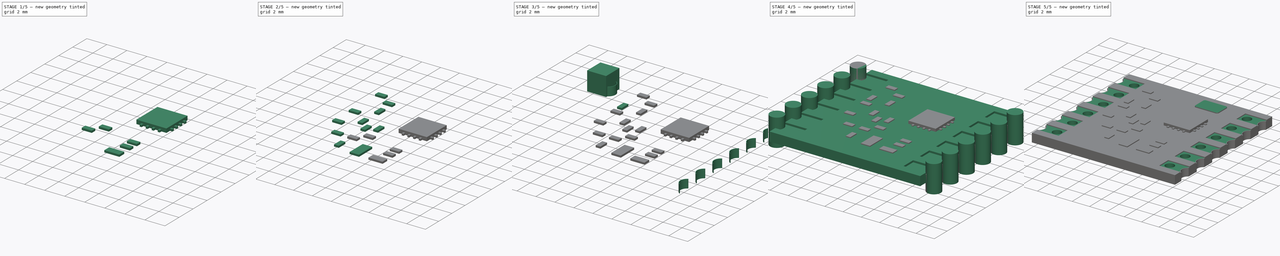
[diagram: build sequence overview — one tinted view per stage of 5, left to right]
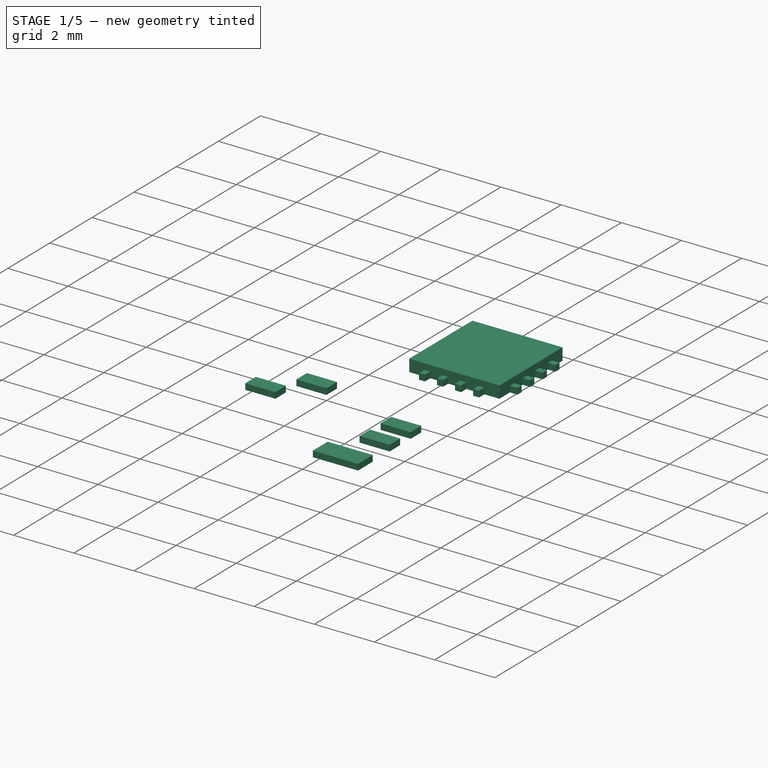
[diagram: stage 1 of 5 — iso view after this stage's code; geometry added in this stage tinted green]
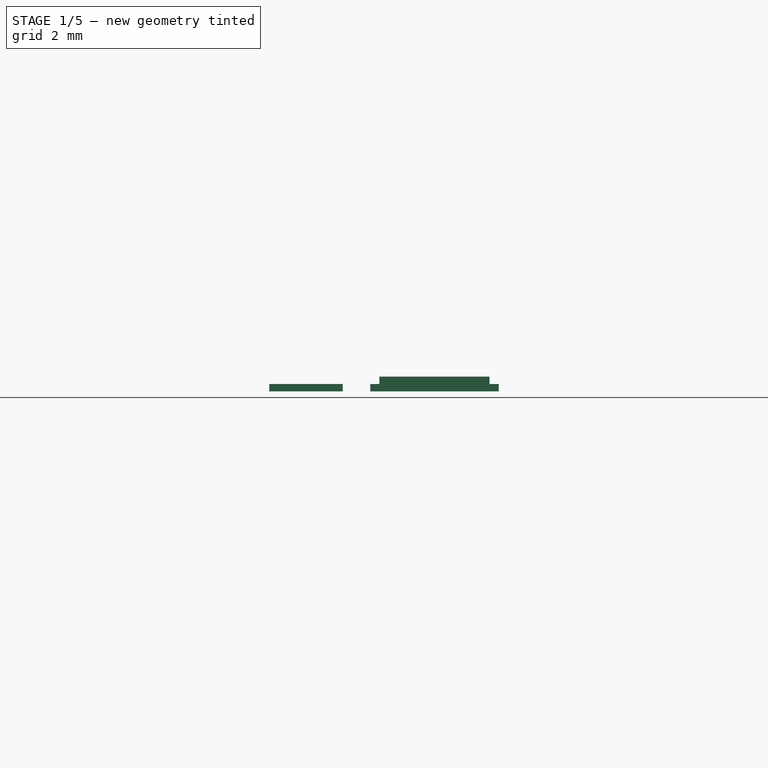
[diagram: stage 1 of 5 — front view after this stage's code; geometry added in this stage tinted green]
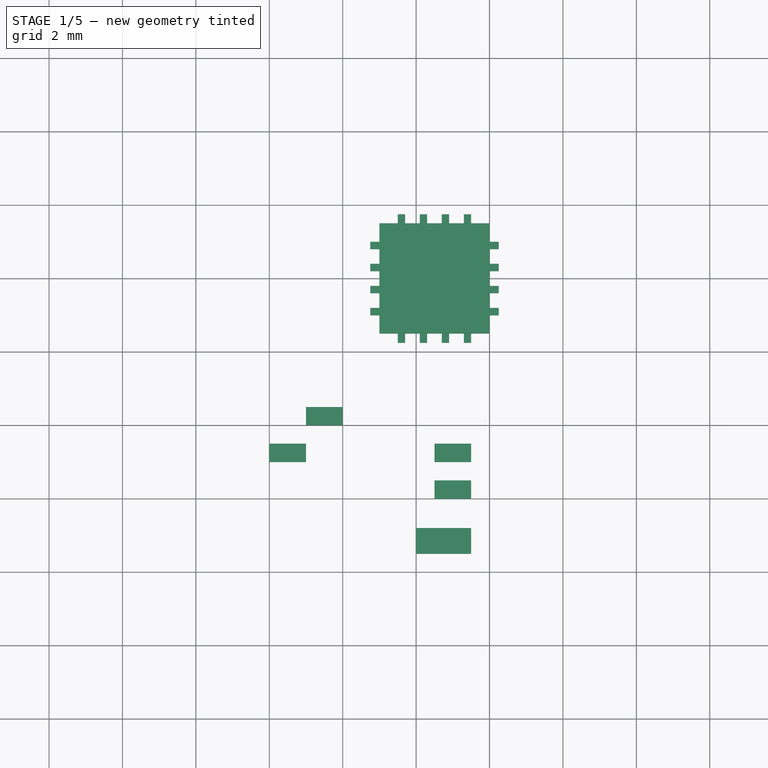
[diagram: stage 1 of 5 — top view after this stage's code; geometry added in this stage tinted green]
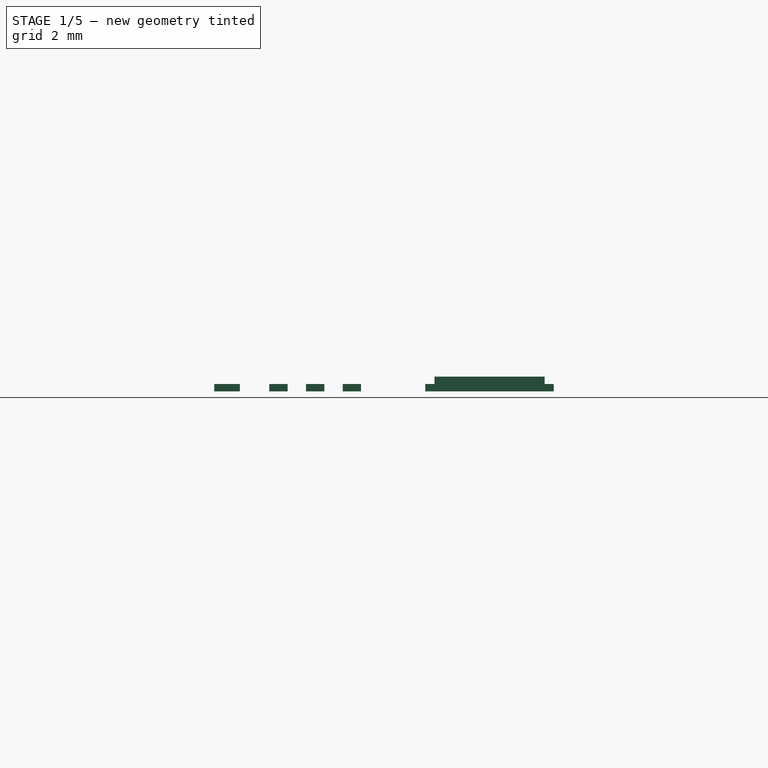
[diagram: stage 1 of 5 — right view after this stage's code; geometry added in this stage tinted green]
FCSTD DOCUMENT  (FreeCAD 0.17R11223 (Git))
Label: ZETA-433-SO_02
License: All rights reserved
LicenseURL: http://en.wikipedia.org/wiki/All_rights_reserved
objects: Part::Box×25, Part::FeaturePython×9, Part::Cut×8, Part::Cylinder×7, Part::MultiFuse×3, Part::Fillet×2, Sketcher::SketchObject×1, PartDesign::Pad×1, PartDesign::Body×1, App::DocumentObjectGroup×1
note: 58 computed .brp shape members not serialized (recipe doc carries the construction recipe); baked Part::Feature solids carry a one-line shape summary decoded from their .brp

FEATURE [Part::Box] Box015  label="Kub015"
  AttacherType = Attacher::AttachEngine3D
  Height = 0.2
  Length = 1
  Placement = pos=(-2,-3,0.9) rot=(0,0,1;0rad)
  Width = 0.5
FEATURE [Part::Box] Box016  label="Kub016"
  AttacherType = Attacher::AttachEngine3D
  Height = 0.2
  Length = 1
  Placement = pos=(-1,-2,0.9) rot=(0,0,1;0rad)
  Width = 0.5
FEATURE [Part::Box] Box017  label="Kub017"
  AttacherType = Attacher::AttachEngine3D
  Height = 0.2
  Length = 1.5
  Placement = pos=(2,-5.5,0.9) rot=(0,0,1;0rad)
  Width = 0.7
FEATURE [Part::Box] Box018  label="Kub018"
  AttacherType = Attacher::AttachEngine3D
  Height = 0.2
  Length = 1
  Placement = pos=(2.5,-4,0.9) rot=(0,0,1;0rad)
  Width = 0.5
FEATURE [Part::Box] Box019  label="Kub019"
  AttacherType = Attacher::AttachEngine3D
  Height = 0.2
  Length = 1
  Placement = pos=(2.5,-3,0.9) rot=(0,0,1;0rad)
  Width = 0.5
FEATURE [Part::Box] Box021  label="Kub021"
  AttacherType = Attacher::AttachEngine3D
  Height = 0.4
  Length = 3
  Placement = pos=(1,0.5,0.9) rot=(0,0,1;0rad)
  Width = 3
FEATURE [Part::Box] Box022  label="Kub022"
  AttacherType = Attacher::AttachEngine3D
  Height = 0.2
  Length = 0.2
  Placement = pos=(1.5,0.25,0.9) rot=(0,0,1;0rad)
  Width = 0.7
FEATURE [Part::FeaturePython] Array005  # Draft array (typed FeaturePython)
  Angle = 360
  ArrayType = 0
  Axis = (0,0,1)
  Base = -> Box022
  Center = (0,0,0)
  Fuse = false
  IntervalAxis = (0,0,0)
  IntervalX = (0.6,0,0)
  IntervalY = (0,2.8,0)
  IntervalZ = (0,0,0)
  NumberPolar = 1
  NumberX = 4
  NumberY = 2
  NumberZ = 1
FEATURE [Part::Box] Box023  label="Kub023"
  AttacherType = Attacher::AttachEngine3D
  Height = 0.2
  Length = 0.7
  Placement = pos=(0.75,2.8,0.9) rot=(0,0,1;0rad)
  Width = 0.2
FEATURE [Part::FeaturePython] Array006  # Draft array (typed FeaturePython)
  Angle = 360
  ArrayType = 0
  Axis = (0,0,1)
  Base = -> Box023
  Center = (0,0,0)
  Fuse = false
  IntervalAxis = (0,0,0)
  IntervalX = (2.8,0,0)
  IntervalY = (0,-0.6,0)
  IntervalZ = (0,0,0)
  NumberPolar = 1
  NumberX = 2
  NumberY = 4
  NumberZ = 1
FEATURE [Part::MultiFuse] Fusion002
  Shapes = -> [Box021,Array006,Array005]
FEATURE [App::DocumentObjectGroup] Grupp  label="Chips"
  Group = -> [Fusion002,Box003,Box004,Box005,Box006,Box007,Box008,Box009,Box010,Box011,Box012,Box013,Box014,Box015,Box016,Box017,Box018,Box019]
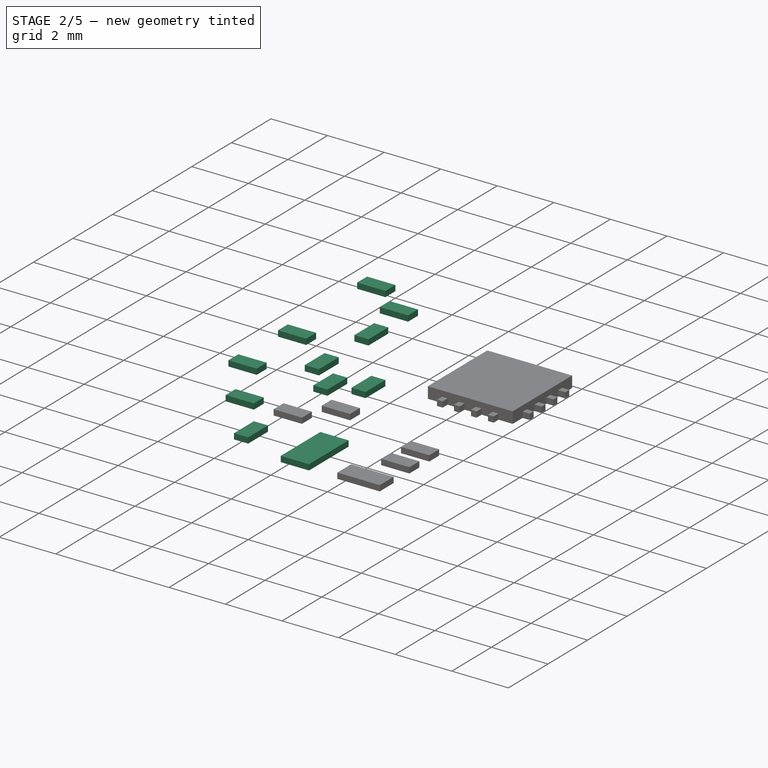
[diagram: stage 2 of 5 — iso view after this stage's code; geometry added in this stage tinted green]
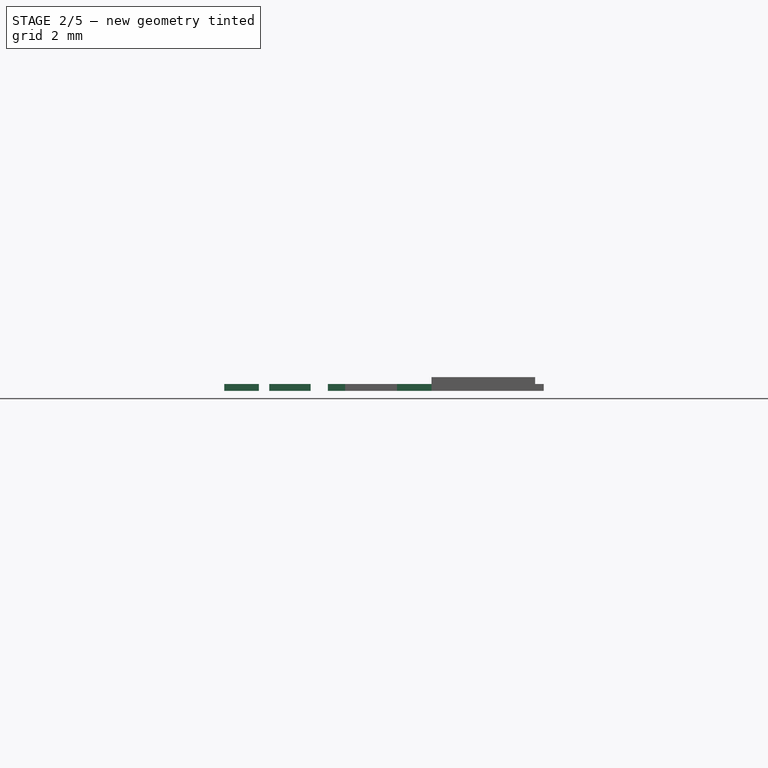
[diagram: stage 2 of 5 — front view after this stage's code; geometry added in this stage tinted green]
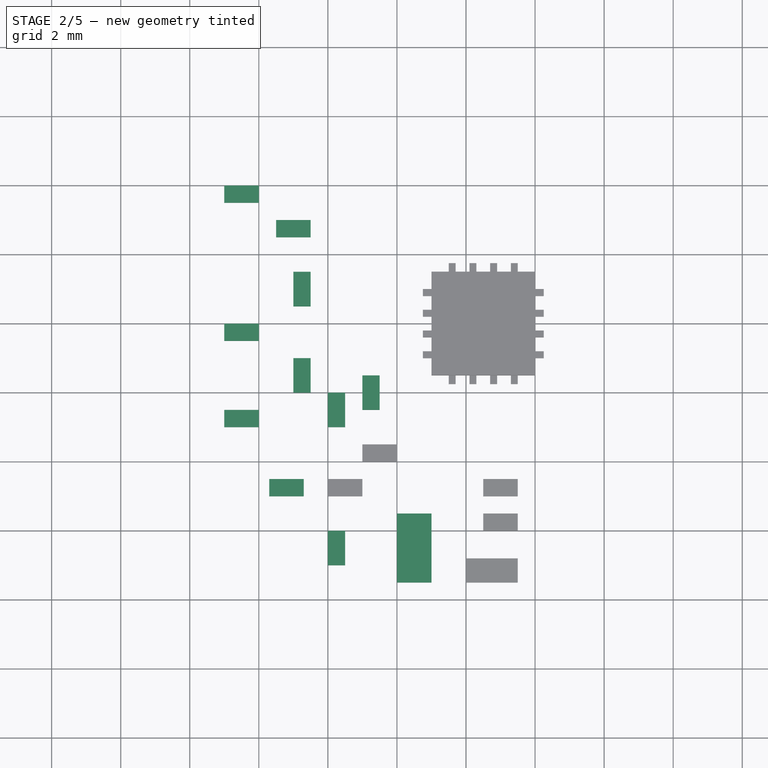
[diagram: stage 2 of 5 — top view after this stage's code; geometry added in this stage tinted green]
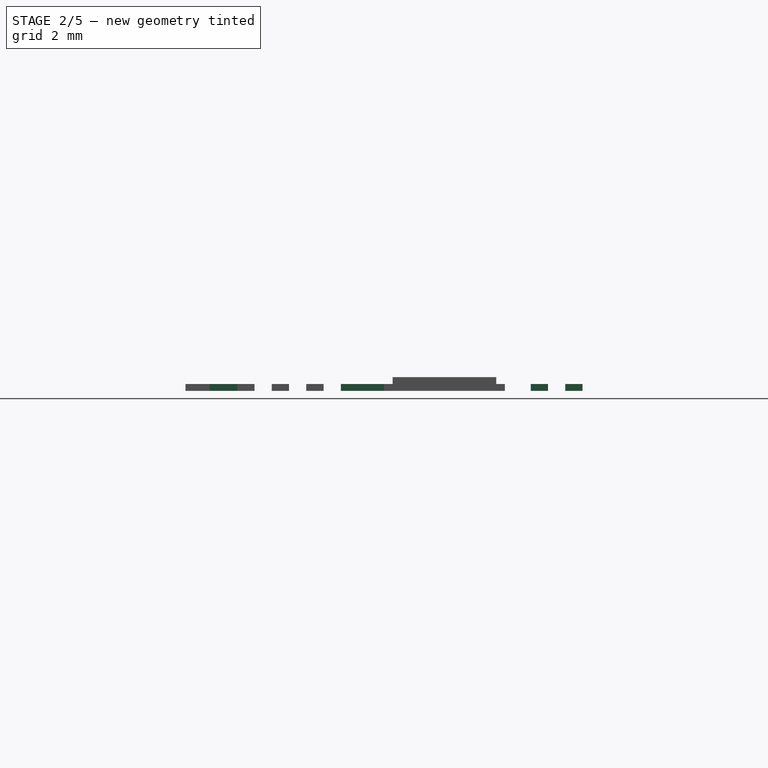
[diagram: stage 2 of 5 — right view after this stage's code; geometry added in this stage tinted green]
FEATURE [Part::Box] Box004  label="Kub004"
  AttacherType = Attacher::AttachEngine3D
  Height = 0.2
  Length = 0.5
  Placement = pos=(-3,2.5,0.9) rot=(0,0,1;0rad)
  Width = 1
FEATURE [Part::Box] Box005  label="Kub005"
  AttacherType = Attacher::AttachEngine3D
  Height = 0.2
  Length = 0.5
  Placement = pos=(-2,-1,0.9) rot=(0,0,1;0rad)
  Width = 1
FEATURE [Part::Box] Box006  label="Kub006"
  AttacherType = Attacher::AttachEngine3D
  Height = 0.2
  Length = 0.5
  Placement = pos=(-2,-5,0.9) rot=(0,0,1;0rad)
  Width = 1
FEATURE [Part::Box] Box007  label="Kub007"
  AttacherType = Attacher::AttachEngine3D
  Height = 0.2
  Length = 0.5
  Placement = pos=(-1,-0.5,0.9) rot=(0,0,1;0rad)
  Width = 1
FEATURE [Part::Box] Box008  label="Kub008"
  AttacherType = Attacher::AttachEngine3D
  Height = 0.2
  Length = 1
  Placement = pos=(0,-5.5,0.9) rot=(0,0,1;0rad)
  Width = 2
FEATURE [Part::Box] Box009  label="Kub009"
  AttacherType = Attacher::AttachEngine3D
  Height = 0.2
  Length = 1
  Placement = pos=(-5,5.5,0.9) rot=(0,0,1;0rad)
  Width = 0.5
FEATURE [Part::Box] Box010  label="Kub010"
  AttacherType = Attacher::AttachEngine3D
  Height = 0.2
  Length = 1
  Placement = pos=(-5,1.5,0.9) rot=(0,0,1;0rad)
  Width = 0.5
FEATURE [Part::Box] Box011  label="Kub011"
  AttacherType = Attacher::AttachEngine3D
  Height = 0.2
  Length = 1
  Placement = pos=(-3.5,4.5,0.9) rot=(0,0,1;0rad)
  Width = 0.5
FEATURE [Part::Box] Box012  label="Kub012"
  AttacherType = Attacher::AttachEngine3D
  Height = 0.2
  Length = 1
  Placement = pos=(-5,-1,0.9) rot=(0,0,1;0rad)
  Width = 0.5
FEATURE [Part::Box] Box013  label="Kub013"
  AttacherType = Attacher::AttachEngine3D
  Height = 0.2
  Length = 1
  Placement = pos=(-3.7,-3,0.9) rot=(0,0,1;0rad)
  Width = 0.5
FEATURE [Part::Box] Box014  label="Kub014"
  AttacherType = Attacher::AttachEngine3D
  Height = 0.2
  Length = 0.5
  Placement = pos=(-3,0,0.9) rot=(0,0,1;0rad)
  Width = 1
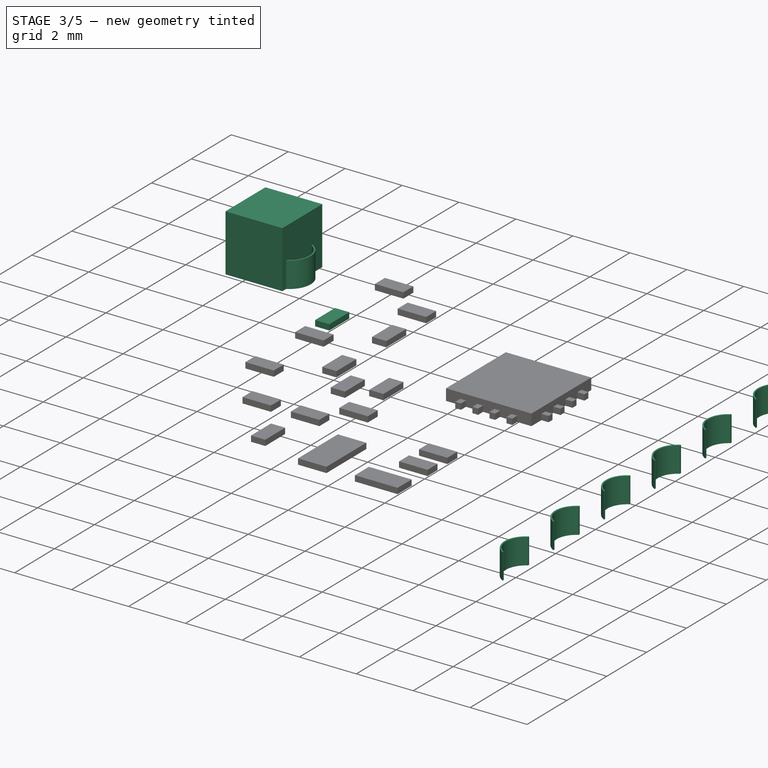
[diagram: stage 3 of 5 — iso view after this stage's code; geometry added in this stage tinted green]
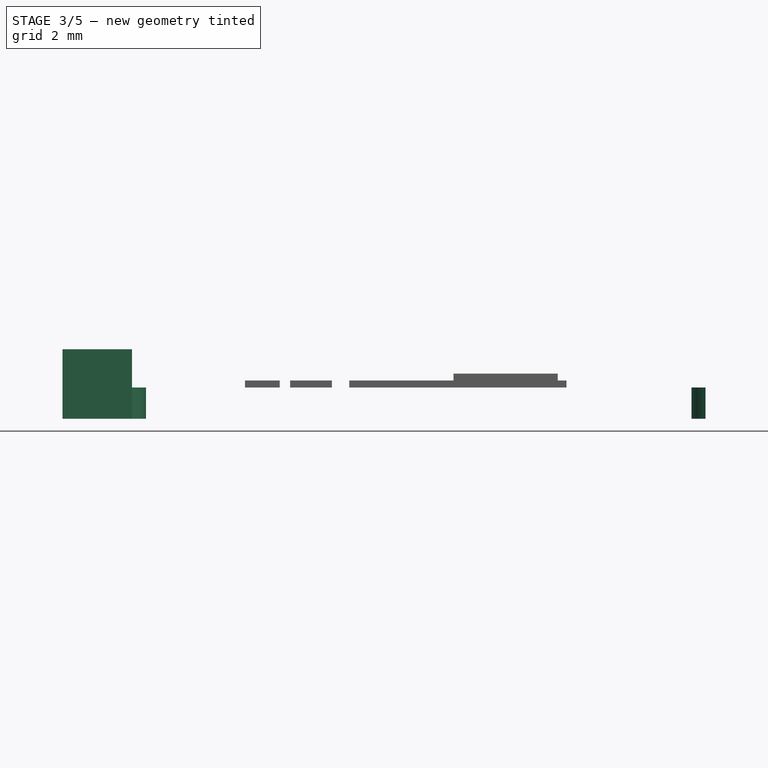
[diagram: stage 3 of 5 — front view after this stage's code; geometry added in this stage tinted green]
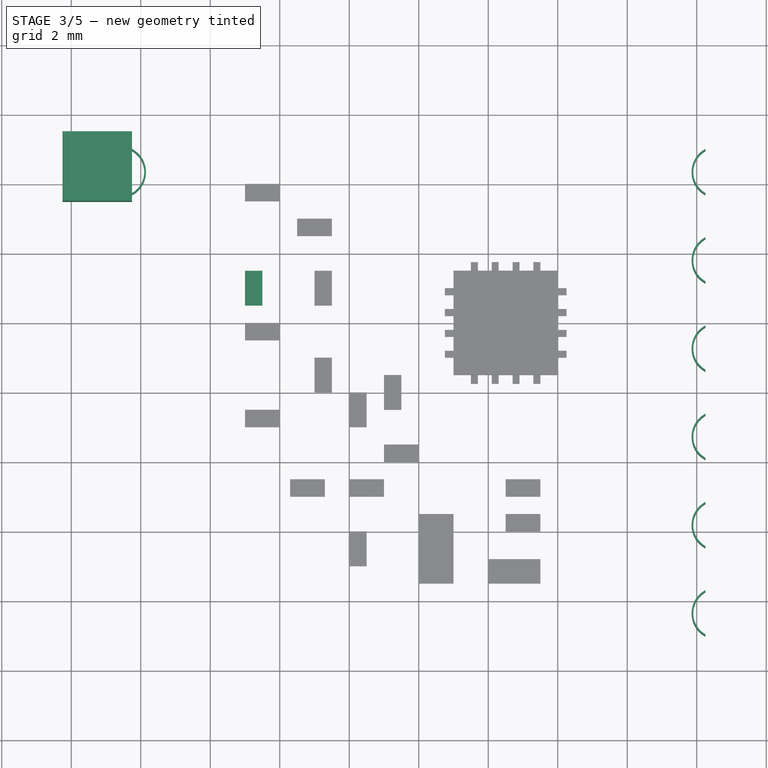
[diagram: stage 3 of 5 — top view after this stage's code; geometry added in this stage tinted green]
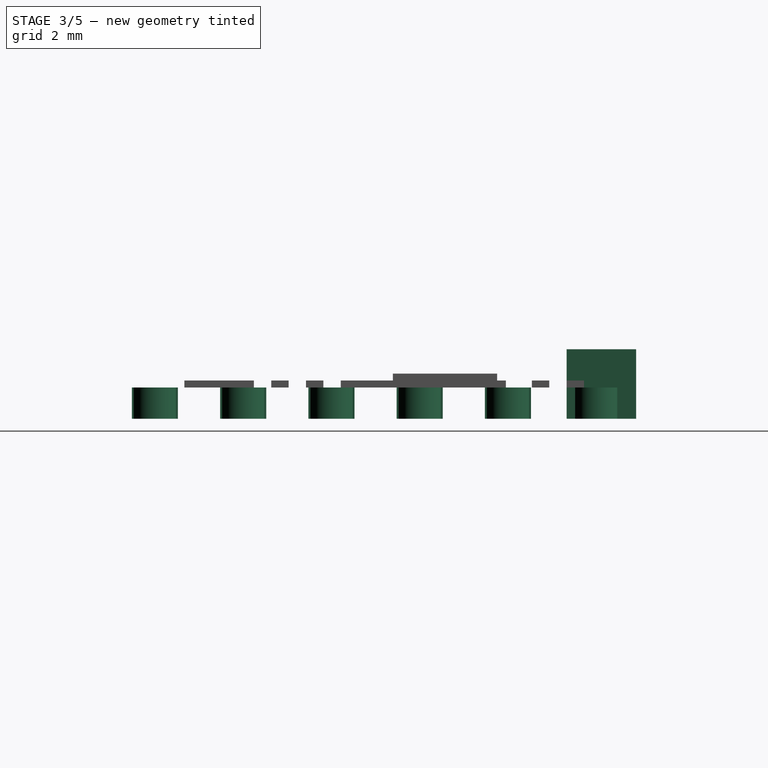
[diagram: stage 3 of 5 — right view after this stage's code; geometry added in this stage tinted green]
FEATURE [Part::Cylinder] Cylinder001
  Angle = 360
  AttacherType = Attacher::AttachEngine3D
  Height = 0.9
  Placement = pos=(-8.6,6.35,0) rot=(0,0,1;0rad)
  Radius = 0.75
FEATURE [Part::Cylinder] Cylinder004
  Angle = 360
  AttacherType = Attacher::AttachEngine3D
  Height = 0.9
  Placement = pos=(-8.6,6.35,0) rot=(0,0,1;0rad)
  Radius = 0.7
FEATURE [Part::Box] Box002  label="Kub002"
  AttacherType = Attacher::AttachEngine3D
  Height = 2
  Length = 2
  Placement = pos=(-10.25,5.5,0) rot=(0,0,1;0rad)
  Width = 2
FEATURE [Part::Cut] Cut004
  Base = -> Cylinder001
  Tool = -> Cylinder004
FEATURE [Part::Box] Box003  label="Kub003"
  AttacherType = Attacher::AttachEngine3D
  Height = 0.2
  Length = 0.5
  Placement = pos=(-5,2.5,0.9) rot=(0,0,1;0rad)
  Width = 1
FEATURE [Part::Cylinder] Cylinder005
  Angle = 360
  AttacherType = Attacher::AttachEngine3D
  Height = 0.9
  Placement = pos=(-8.6,6.35,0) rot=(0,0,1;0rad)
  Radius = 0.75
FEATURE [Part::Cylinder] Cylinder006
  Angle = 360
  AttacherType = Attacher::AttachEngine3D
  Height = 0.9
  Placement = pos=(-8.6,6.35,0) rot=(0,0,1;0rad)
  Radius = 0.7
FEATURE [Part::Box] Box024  label="Kub024"
  AttacherType = Attacher::AttachEngine3D
  Height = 2
  Length = 2
  Placement = pos=(-10.25,5.5,0) rot=(0,0,1;0rad)
  Width = 2
FEATURE [Part::Cut] Cut006
  Base = -> Cylinder005
  Tool = -> Cylinder006
FEATURE [Part::Cut] Cut007
  Base = -> Cut006
  Placement = pos=(0,0,0) rot=(0,0,1;3.14159rad)
  Tool = -> Box024
FEATURE [Part::FeaturePython] Array008  # Draft array (typed FeaturePython)
  Angle = 360
  ArrayType = 0
  Axis = (0,0,1)
  Base = -> Cut007
  Center = (0,0,0)
  Fuse = false
  IntervalAxis = (0,0,0)
  IntervalX = (1,0,0)
  IntervalY = (0,2.54,0)
  IntervalZ = (0,0,0)
  NumberPolar = 1
  NumberX = 1
  NumberY = 6
  NumberZ = 1
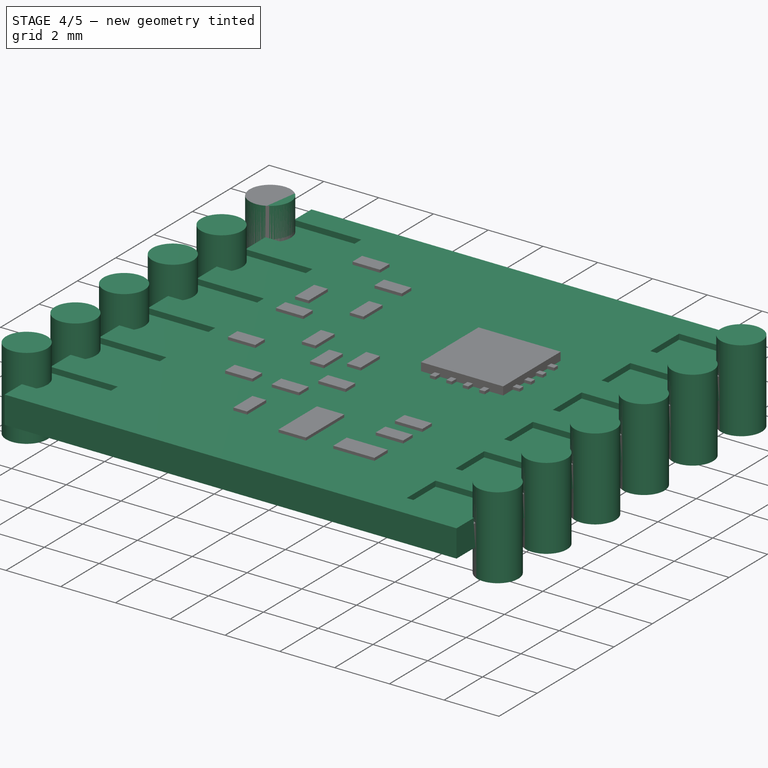
[diagram: stage 4 of 5 — iso view after this stage's code; geometry added in this stage tinted green]
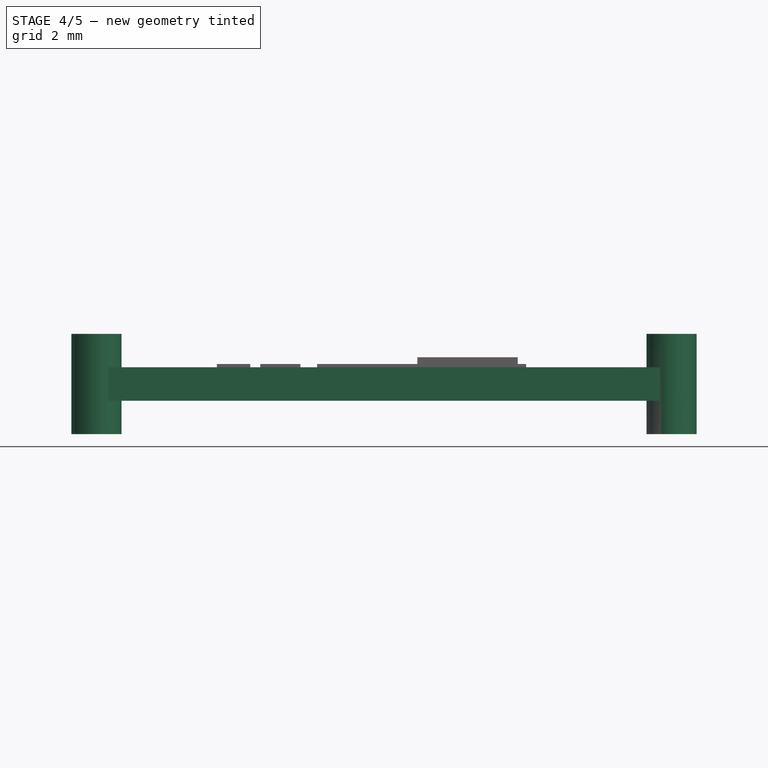
[diagram: stage 4 of 5 — front view after this stage's code; geometry added in this stage tinted green]
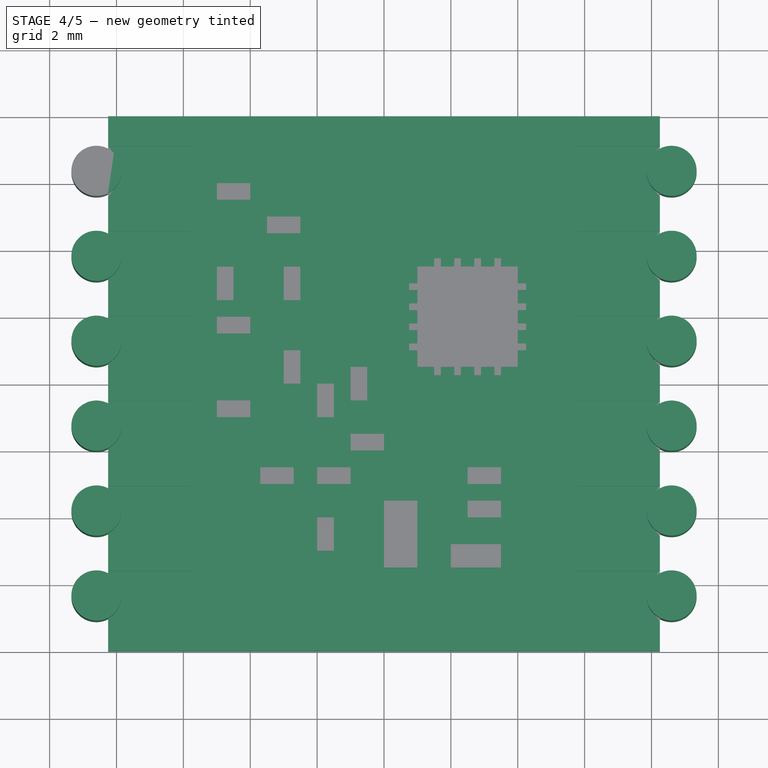
[diagram: stage 4 of 5 — top view after this stage's code; geometry added in this stage tinted green]
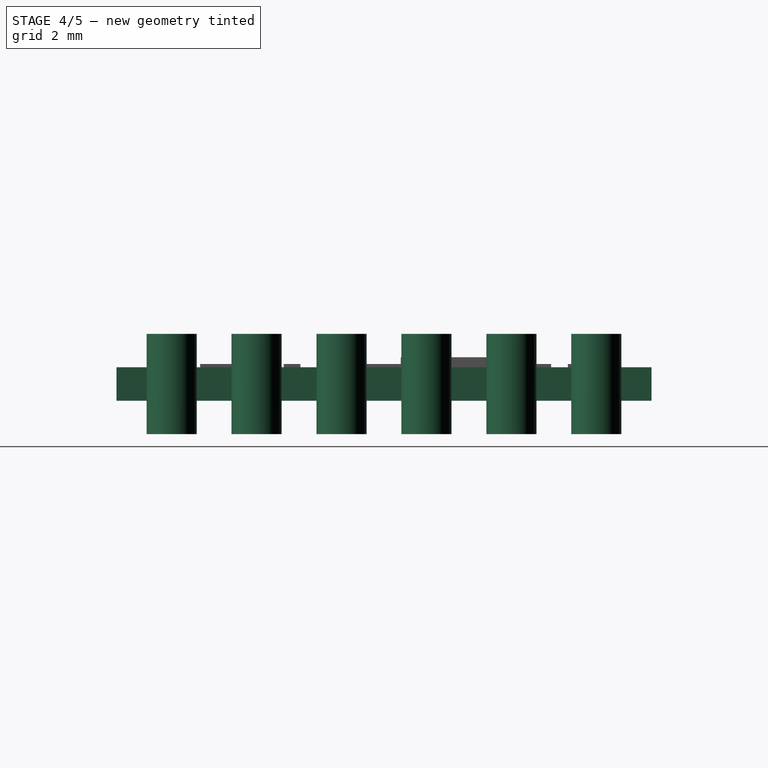
[diagram: stage 4 of 5 — right view after this stage's code; geometry added in this stage tinted green]
FEATURE [Sketcher::SketchObject] Sketch
  MapMode = 5
  Support = -> [XY_Plane]
  sketch-geometry (4):
    g0: LineSegment StartX=-8.25 StartY=8 StartZ=0 EndX=8.25 EndY=8 EndZ=0
    g1: LineSegment StartX=8.25 StartY=8 StartZ=0 EndX=8.25 EndY=-8 EndZ=0
    g2: LineSegment StartX=8.25 StartY=-8 StartZ=0 EndX=-8.25 EndY=-8 EndZ=0
    g3: LineSegment StartX=-8.25 StartY=-8 StartZ=0 EndX=-8.25 EndY=8 EndZ=0
  constraints (12):
    c: Coincident(g0,g1)
    c: Coincident(g1,g2)
    c: Coincident(g2,g3)
    c: Coincident(g3,g0)
    c: Horizontal(g0)
    c: Horizontal(g2)
    c: Vertical(g1)
    c: Vertical(g3)
    c: DistanceY(g1,g0) = 16
    c: DistanceX(g0,g0) = 16.5
    c: DistanceY(g-1,g0) = 8
    c: DistanceX(g0,g-1) = 8.25
FEATURE [PartDesign::Pad] Pad
  Length = 1
  Length2 = 100
  Profile = -> Sketch
  Type = 0
FEATURE [PartDesign::Body] Body
  Group = -> [Sketch,Pad]
  Origin = -> BodyOrigin
  Tip = -> Pad
FEATURE [Part::Cylinder] Cylinder
  Angle = 360
  AttacherType = Attacher::AttachEngine3D
  Height = 3
  Placement = pos=(-8.6,6.35,-1) rot=(0,0,1;0rad)
  Radius = 0.75
FEATURE [Part::FeaturePython] Array  # Draft array (typed FeaturePython)
  Angle = 360
  ArrayType = 0
  Axis = (0,0,1)
  Base = -> Cylinder
  Center = (0,0,0)
  Fuse = false
  IntervalAxis = (0,0,0)
  IntervalX = (17.2,0,0)
  IntervalY = (0,-2.54,0)
  IntervalZ = (0,0,0)
  NumberPolar = 1
  NumberX = 2
  NumberY = 6
  NumberZ = 1
FEATURE [Part::Box] Box  label="Kub"
  AttacherType = Attacher::AttachEngine3D
  Height = 0.3
  Length = 2.5
  Placement = pos=(-8.3,5.6,0.8) rot=(0,0,1;0rad)
  Width = 1.5
FEATURE [Part::FeaturePython] Array002  # Draft array (typed FeaturePython)
  Angle = 360
  ArrayType = 0
  Axis = (0,0,1)
  Base = -> Box
  Center = (0,0,0)
  Fuse = false
  IntervalAxis = (0,0,0)
  IntervalX = (14.1,0,0)
  IntervalY = (0,-2.54,0)
  IntervalZ = (0,0,0)
  NumberPolar = 1
  NumberX = 2
  NumberY = 6
  NumberZ = 1
FEATURE [Part::Cut] Cut
  Base = -> Body
  Tool = -> Array002
FEATURE [Part::Cut] Cut001
  Base = -> Cut
  Tool = -> Array
FEATURE [Part::Cylinder] Cylinder003
  Angle = 360
  AttacherType = Attacher::AttachEngine3D
  Height = 3
  Placement = pos=(-8.6,6.35,-1) rot=(0,0,1;0rad)
  Radius = 0.75
FEATURE [Part::FeaturePython] Array004  # Draft array (typed FeaturePython)
  Angle = 360
  ArrayType = 0
  Axis = (0,0,1)
  Base = -> Cylinder003
  Center = (0,0,0)
  Fuse = false
  IntervalAxis = (0,0,0)
  IntervalX = (17.2,0,0)
  IntervalY = (0,-2.54,0)
  IntervalZ = (0,0,0)
  NumberPolar = 1
  NumberX = 2
  NumberY = 6
  NumberZ = 1
FEATURE [Part::Cut] Cut005
  Base = -> Cut004
  Tool = -> Box002
FEATURE [Part::FeaturePython] Array007  # Draft array (typed FeaturePython)
  Angle = 360
  ArrayType = 0
  Axis = (0,0,1)
  Base = -> Cut005
  Center = (0,0,0)
  Fuse = false
  IntervalAxis = (0,0,0)
  IntervalX = (1,0,0)
  IntervalY = (0,-2.54,0)
  IntervalZ = (0,0,0)
  NumberPolar = 1
  NumberX = 1
  NumberY = 6
  NumberZ = 1
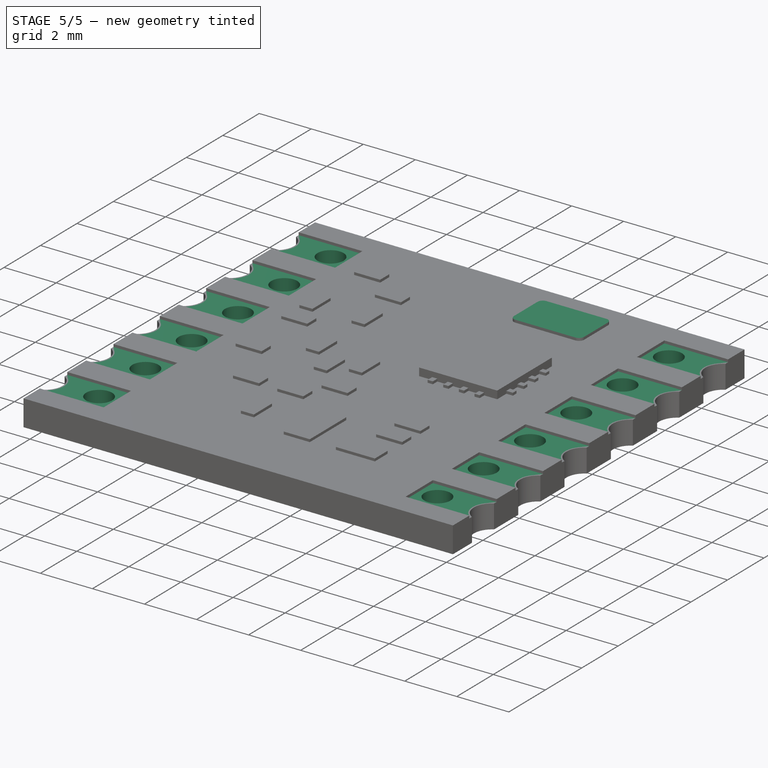
[diagram: stage 5 of 5 — iso view after this stage's code; geometry added in this stage tinted green]
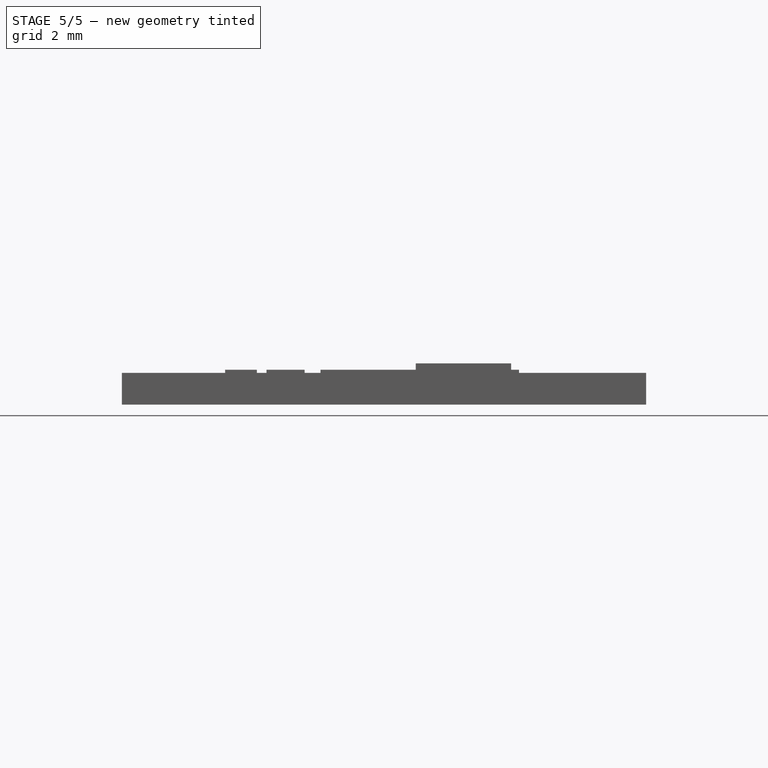
[diagram: stage 5 of 5 — front view after this stage's code; geometry added in this stage tinted green]
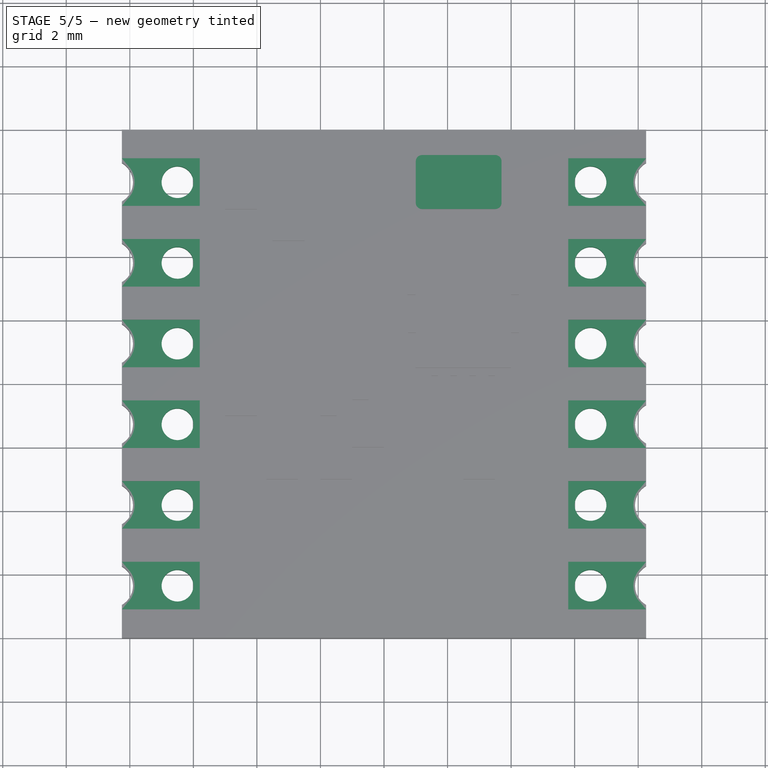
[diagram: stage 5 of 5 — top view after this stage's code; geometry added in this stage tinted green]
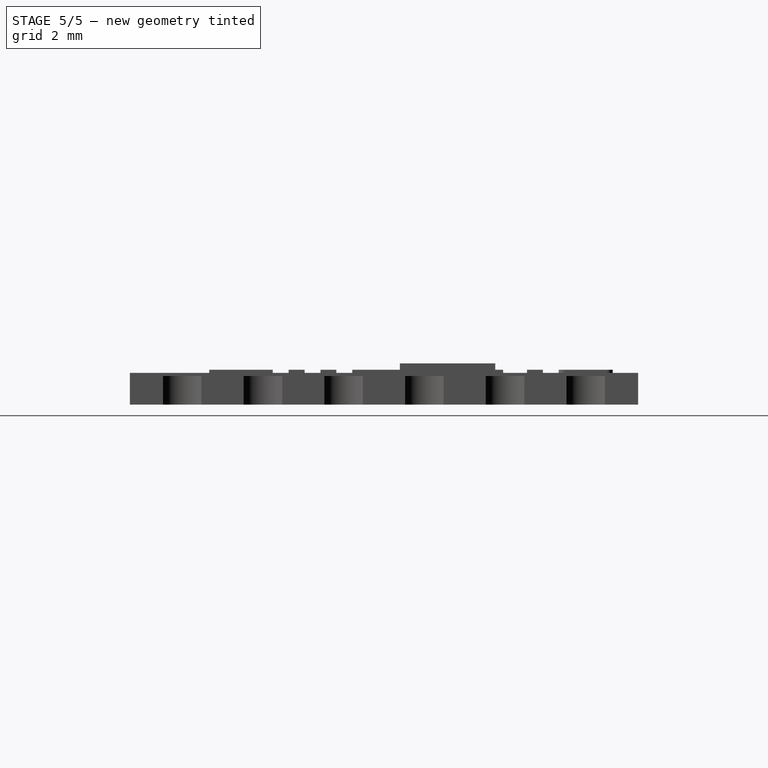
[diagram: stage 5 of 5 — right view after this stage's code; geometry added in this stage tinted green]
FEATURE [Part::Cylinder] Cylinder002
  Angle = 360
  AttacherType = Attacher::AttachEngine3D
  Height = 3
  Placement = pos=(-6.5,6.35,-1) rot=(0,0,1;0rad)
  Radius = 0.5
FEATURE [Part::FeaturePython] Array001  # Draft array (typed FeaturePython)
  Angle = 360
  ArrayType = 0
  Axis = (0,0,1)
  Base = -> Cylinder002
  Center = (0,0,0)
  Fuse = false
  IntervalAxis = (0,0,0)
  IntervalX = (13,0,0)
  IntervalY = (0,-2.54,0)
  IntervalZ = (0,0,0)
  NumberPolar = 1
  NumberX = 2
  NumberY = 6
  NumberZ = 1
FEATURE [Part::Box] Box001  label="Kub001"
  AttacherType = Attacher::AttachEngine3D
  Height = 0.1
  Length = 2.5
  Placement = pos=(-8.25,5.6,0.8) rot=(0,0,1;0rad)
  Width = 1.5
FEATURE [Part::FeaturePython] Array003  # Draft array (typed FeaturePython)
  Angle = 360
  ArrayType = 0
  Axis = (0,0,1)
  Base = -> Box001
  Center = (0,0,0)
  Fuse = false
  IntervalAxis = (0,0,0)
  IntervalX = (14,0,0)
  IntervalY = (0,-2.54,0)
  IntervalZ = (0,0,0)
  NumberPolar = 1
  NumberX = 2
  NumberY = 6
  NumberZ = 1
FEATURE [Part::MultiFuse] Fusion
  Shapes = -> [Cut001,Array003]
FEATURE [Part::Cut] Cut002
  Base = -> Fusion
  Tool = -> Array001
FEATURE [Part::Cut] Cut003
  Base = -> Cut002
  Tool = -> Array004
FEATURE [Part::Box] Box020  label="Kub020"
  AttacherType = Attacher::AttachEngine3D
  Height = 0.2
  Length = 2.7
  Placement = pos=(1,5.5,0.9) rot=(0,0,1;0rad)
  Width = 1.7
FEATURE [Part::Fillet] Fillet
  Base = -> Box020
  Edges = 2 edges r=0.2: [Edge1,Edge5]
FEATURE [Part::Fillet] Fillet001
  Base = -> Fillet
  Edges = 2 edges r=0.2: [Edge3,Edge13]
FEATURE [Part::MultiFuse] Fusion001  label="PCB"
  Shapes = -> [Cut003,Array007,Array008]
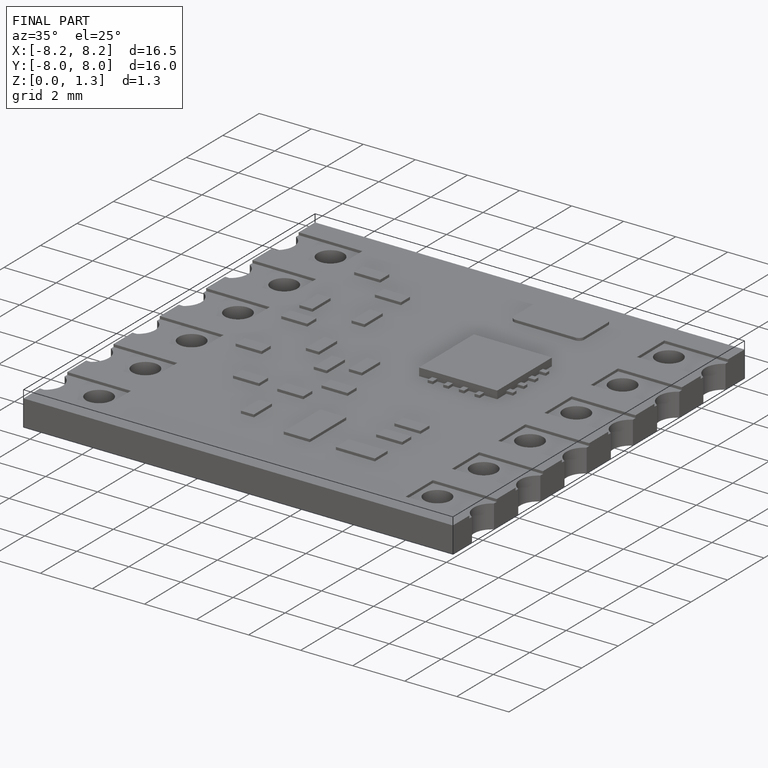
[diagram: finished part — iso view with bounding-box wireframe]
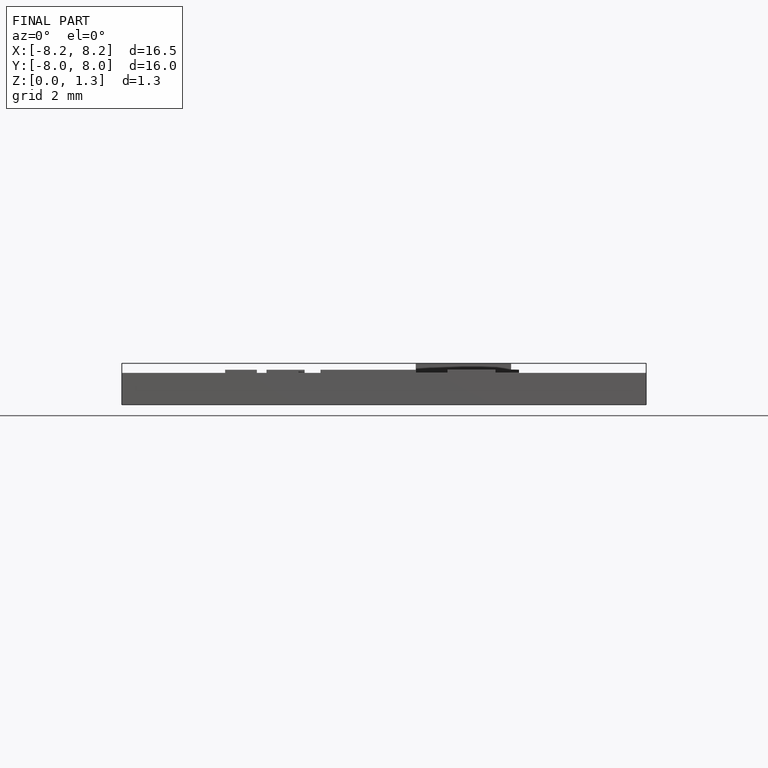
[diagram: finished part — front view with bounding-box wireframe]
